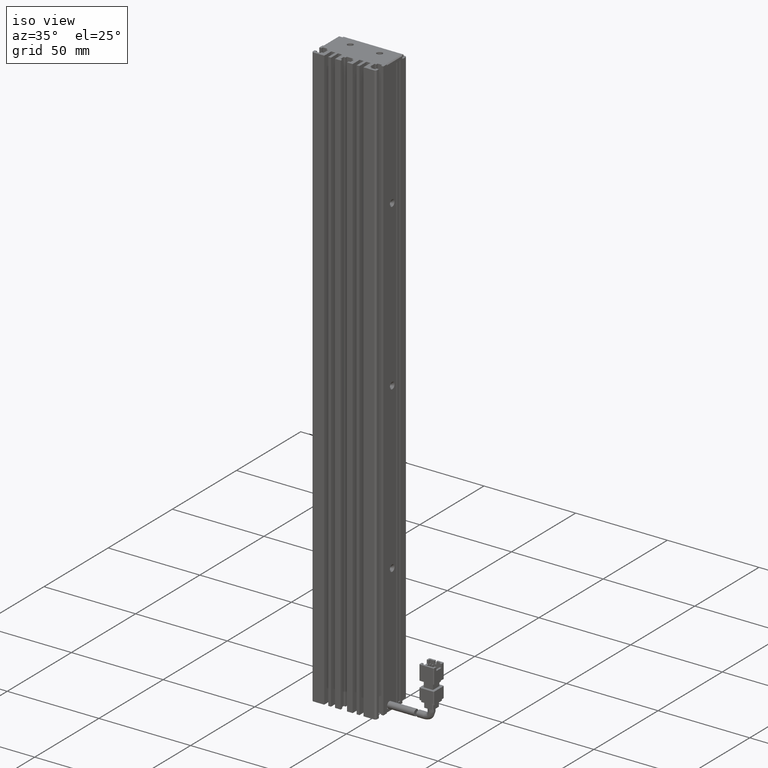
[diagram: clean part render]
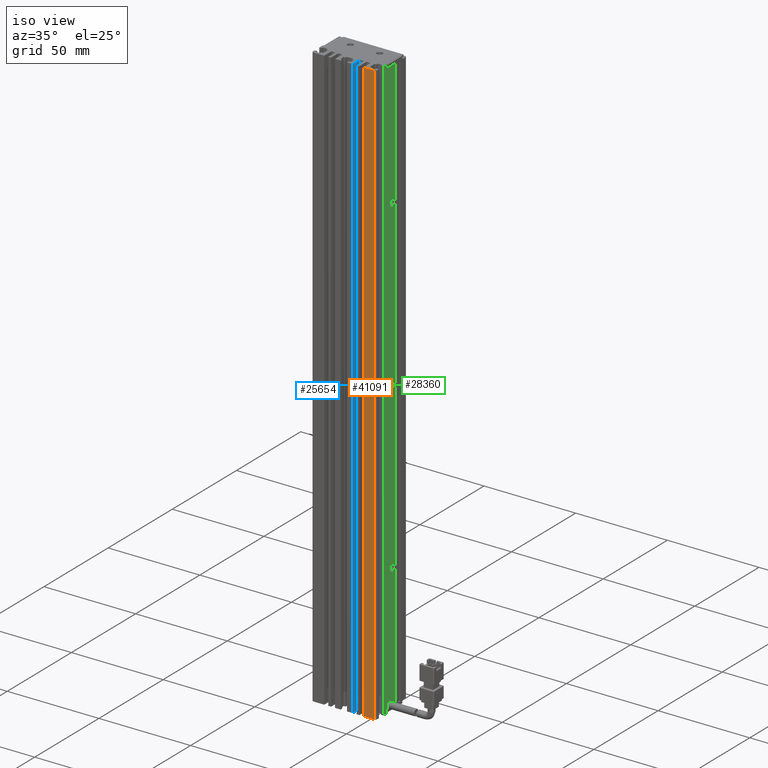
[diagram: same view with three faces highlighted in distinct colors, each labeled with its STEP entity id]
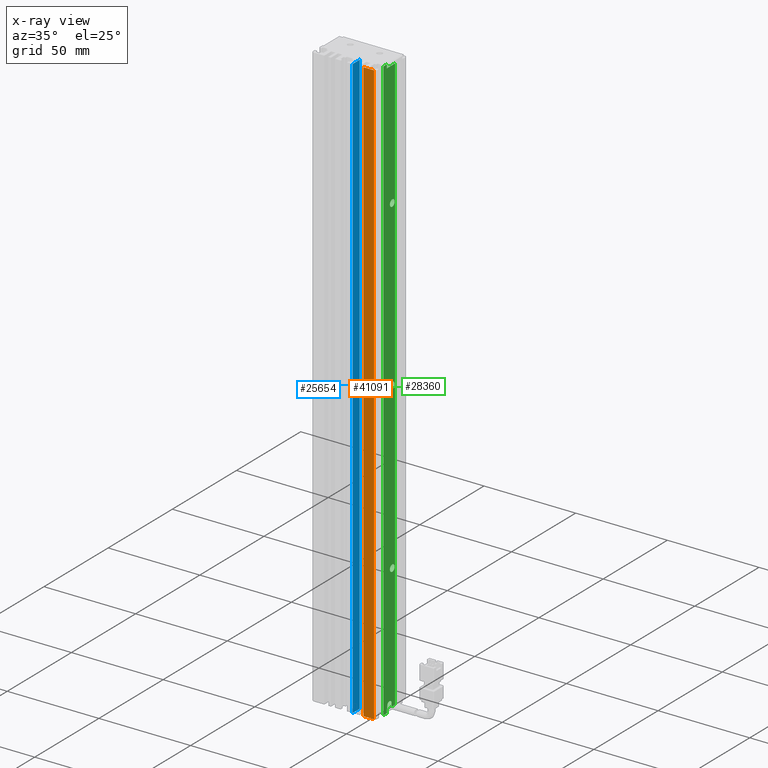
[diagram: x-ray of the same camera — body ghosted, the three highlighted faces saturated]
A machine part, iso view with three faces highlighted in distinct colors.
The next image is the same camera in x-ray (body ghosted, the three faces saturated) — at least one of them is partly hidden behind the body in this view.
Their STEP definitions:

[orange] entity #41091 — the highlighted planar face has unit normal (-0, 1, 0).
#2053 = CARTESIAN_POINT ( 'NONE',  ( 51.62537974683542100, 10.99073232304837000, 45.00000000000000000 ) ) ;
#5218 = ORIENTED_EDGE ( 'NONE', *, *, #48357, .F. ) ;
#10367 = ORIENTED_EDGE ( 'NONE', *, *, #105050, .F. ) ;
#15469 = VERTEX_POINT ( 'NONE', #39201 ) ;
#21302 = DIRECTION ( 'NONE',  ( -0.0000000000000000000, -0.0000000000000000000, -1.000000000000000000 ) ) ;
#28311 = LINE ( 'NONE', #38306, #95627 ) ;
#33579 = CARTESIAN_POINT ( 'NONE',  ( 40.92537974683542500, 10.99073232304837000, -275.0000000000000000 ) ) ;
#34014 = DIRECTION ( 'NONE',  ( 1.000000000000000000, 0.0000000000000000000, 0.0000000000000000000 ) ) ;
#35605 = ORIENTED_EDGE ( 'NONE', *, *, #122780, .F. ) ;
#38306 = CARTESIAN_POINT ( 'NONE',  ( 40.92537974683542500, 10.99073232304837000, 45.00000000000000000 ) ) ;
#39201 = CARTESIAN_POINT ( 'NONE',  ( 57.42537974683542500, 10.99073232304837200, 45.00000000000000000 ) ) ;
#41091 = ADVANCED_FACE ( 'NONE', ( #48156 ), #65164, .F. ) ;
#41250 = EDGE_LOOP ( 'NONE', ( #10367, #5218, #35605, #48142 ) ) ;
#45866 = VECTOR ( 'NONE', #34014, 1000.000000000000000 ) ;
#47306 = LINE ( 'NONE', #64570, #125901 ) ;
#48142 = ORIENTED_EDGE ( 'NONE', *, *, #120381, .T. ) ;
#48156 = FACE_OUTER_BOUND ( 'NONE', #41250, .T. ) ;
#48357 = EDGE_CURVE ( 'NONE', #103916, #15469, #28311, .T. ) ;
#54410 = DIRECTION ( 'NONE',  ( -7.477256361968982400E-016, 1.000000000000000000, 0.0000000000000000000 ) ) ;
#56150 = DIRECTION ( 'NONE',  ( -1.000000000000000000, -7.477256361968982400E-016, 0.0000000000000000000 ) ) ;
#61947 = LINE ( 'NONE', #33579, #45866 ) ;
#63071 = VECTOR ( 'NONE', #21302, 1000.000000000000000 ) ;
#64570 = CARTESIAN_POINT ( 'NONE',  ( 51.62537974683541400, 10.99073232304837000, 45.00000000000000000 ) ) ;
#65164 = PLANE ( 'NONE',  #84553 ) ;
#71154 = VERTEX_POINT ( 'NONE', #84197 ) ;
#74654 = VERTEX_POINT ( 'NONE', #74781 ) ;
#74781 = CARTESIAN_POINT ( 'NONE',  ( 57.42537974683542500, 10.99073232304837200, -275.0000000000000000 ) ) ;
#83437 = CARTESIAN_POINT ( 'NONE',  ( 57.42537974683542500, 10.99073232304837500, 45.00000000000000000 ) ) ;
#84197 = CARTESIAN_POINT ( 'NONE',  ( 51.62537974683542100, 10.99073232304837000, -275.0000000000000000 ) ) ;
#84553 = AXIS2_PLACEMENT_3D ( 'NONE', #116676, #54410, #56150 ) ;
#88786 = LINE ( 'NONE', #83437, #63071 ) ;
#95627 = VECTOR ( 'NONE', #109576, 1000.000000000000000 ) ;
#103916 = VERTEX_POINT ( 'NONE', #2053 ) ;
#105050 = EDGE_CURVE ( 'NONE', #15469, #74654, #88786, .T. ) ;
#109576 = DIRECTION ( 'NONE',  ( 1.000000000000000000, 0.0000000000000000000, 0.0000000000000000000 ) ) ;
#116676 = CARTESIAN_POINT ( 'NONE',  ( 40.92537974683542500, 10.99073232304836300, 45.00000000000000000 ) ) ;
#120381 = EDGE_CURVE ( 'NONE', #71154, #74654, #61947, .T. ) ;
#122780 = EDGE_CURVE ( 'NONE', #71154, #103916, #47306, .T. ) ;
#125901 = VECTOR ( 'NONE', #126407, 1000.000000000000000 ) ;
#126407 = DIRECTION ( 'NONE',  ( 0.0000000000000000000, 0.0000000000000000000, 1.000000000000000000 ) ) ;

[blue] entity #25654 — the highlighted planar face has unit normal (-1, 0, 0).
#2958 = VERTEX_POINT ( 'NONE', #87055 ) ;
#10936 = VERTEX_POINT ( 'NONE', #98299 ) ;
#14444 = VERTEX_POINT ( 'NONE', #47534 ) ;
#15081 = EDGE_CURVE ( 'NONE', #40540, #2958, #111597, .T. ) ;
#21445 = ORIENTED_EDGE ( 'NONE', *, *, #15081, .F. ) ;
#25654 = ADVANCED_FACE ( 'NONE', ( #41047 ), #80555, .F. ) ;
#26919 = VECTOR ( 'NONE', #95833, 1000.000000000000000 ) ;
#27410 = AXIS2_PLACEMENT_3D ( 'NONE', #91314, #131577, #40235 ) ;
#33029 = CARTESIAN_POINT ( 'NONE',  ( 45.72537974683541500, 7.083797468354437600, -275.0000000000000000 ) ) ;
#36528 = CARTESIAN_POINT ( 'NONE',  ( 45.72537974683541500, 7.083797468354437600, 45.00000000000000000 ) ) ;
#40235 = DIRECTION ( 'NONE',  ( 0.0000000000000000000, 0.0000000000000000000, 1.000000000000000000 ) ) ;
#40540 = VERTEX_POINT ( 'NONE', #94404 ) ;
#41047 = FACE_OUTER_BOUND ( 'NONE', #47537, .T. ) ;
#43265 = DIRECTION ( 'NONE',  ( 0.0000000000000000000, 1.000000000000000000, -0.0000000000000000000 ) ) ;
#43416 = CARTESIAN_POINT ( 'NONE',  ( 45.72537974683541500, 16.49073232304837300, 45.00000000000000000 ) ) ;
#46542 = ORIENTED_EDGE ( 'NONE', *, *, #96921, .F. ) ;
#46809 = DIRECTION ( 'NONE',  ( 0.0000000000000000000, 1.000000000000000000, -0.0000000000000000000 ) ) ;
#47534 = CARTESIAN_POINT ( 'NONE',  ( 45.72537974683541500, 16.49073232304837000, 45.00000000000000000 ) ) ;
#47537 = EDGE_LOOP ( 'NONE', ( #75485, #46542, #21445, #113255 ) ) ;
#62316 = LINE ( 'NONE', #33029, #78346 ) ;
#63704 = LINE ( 'NONE', #43416, #26919 ) ;
#68184 = VECTOR ( 'NONE', #112830, 1000.000000000000000 ) ;
#75485 = ORIENTED_EDGE ( 'NONE', *, *, #96358, .F. ) ;
#78346 = VECTOR ( 'NONE', #43265, 1000.000000000000000 ) ;
#80486 = EDGE_CURVE ( 'NONE', #40540, #10936, #62316, .T. ) ;
#80555 = PLANE ( 'NONE',  #27410 ) ;
#87055 = CARTESIAN_POINT ( 'NONE',  ( 45.72537974683541500, 10.99073232304837000, 45.00000000000000000 ) ) ;
#91314 = CARTESIAN_POINT ( 'NONE',  ( 45.72537974683541500, 7.083797468354437600, 45.00000000000000000 ) ) ;
#94404 = CARTESIAN_POINT ( 'NONE',  ( 45.72537974683541500, 10.99073232304837000, -275.0000000000000000 ) ) ;
#95833 = DIRECTION ( 'NONE',  ( -0.0000000000000000000, -0.0000000000000000000, -1.000000000000000000 ) ) ;
#96358 = EDGE_CURVE ( 'NONE', #14444, #10936, #63704, .T. ) ;
#96921 = EDGE_CURVE ( 'NONE', #2958, #14444, #114745, .T. ) ;
#98299 = CARTESIAN_POINT ( 'NONE',  ( 45.72537974683541500, 16.49073232304837000, -275.0000000000000000 ) ) ;
#111597 = LINE ( 'NONE', #123135, #68184 ) ;
#112830 = DIRECTION ( 'NONE',  ( 0.0000000000000000000, 0.0000000000000000000, 1.000000000000000000 ) ) ;
#113255 = ORIENTED_EDGE ( 'NONE', *, *, #80486, .T. ) ;
#114745 = LINE ( 'NONE', #36528, #129016 ) ;
#123135 = CARTESIAN_POINT ( 'NONE',  ( 45.72537974683541500, 10.99073232304837000, 45.00000000000000000 ) ) ;
#129016 = VECTOR ( 'NONE', #46809, 1000.000000000000000 ) ;
#131577 = DIRECTION ( 'NONE',  ( -1.000000000000000000, 0.0000000000000000000, 0.0000000000000000000 ) ) ;

[green] entity #28360 — the highlighted planar face has unit normal (-1, 0, 0).
#44 = VERTEX_POINT ( 'NONE', #29436 ) ;
#1642 = ORIENTED_EDGE ( 'NONE', *, *, #112100, .F. ) ;
#2477 = EDGE_CURVE ( 'NONE', #33555, #54665, #55099, .T. ) ;
#2732 = CARTESIAN_POINT ( 'NONE',  ( 58.42537974683542500, 25.99073232304837700, 45.00000000000000000 ) ) ;
#3727 = LINE ( 'NONE', #45324, #82006 ) ;
#5166 = CARTESIAN_POINT ( 'NONE',  ( 58.42537974681950900, 23.69073232304836900, -25.00000000000000700 ) ) ;
#6347 = EDGE_CURVE ( 'NONE', #40931, #126141, #15791, .T. ) ;
#7841 = LINE ( 'NONE', #51100, #58835 ) ;
#8772 = DIRECTION ( 'NONE',  ( 0.0000000000000000000, 0.0000000000000000000, -1.000000000000000000 ) ) ;
#9677 = CARTESIAN_POINT ( 'NONE',  ( 58.42537974683542500, 19.49073232304837000, 45.00000000000000000 ) ) ;
#10918 = ORIENTED_EDGE ( 'NONE', *, *, #65922, .F. ) ;
#12350 = CARTESIAN_POINT ( 'NONE',  ( 58.42537974683541800, 19.84073232304836400, -271.4500000000000500 ) ) ;
#12374 = EDGE_CURVE ( 'NONE', #13719, #54665, #3727, .T. ) ;
#12990 = FACE_BOUND ( 'NONE', #15447, .T. ) ;
#13628 = DIRECTION ( 'NONE',  ( 0.0000000000000000000, 0.0000000000000000000, -1.000000000000000000 ) ) ;
#13719 = VERTEX_POINT ( 'NONE', #122011 ) ;
#14644 = VECTOR ( 'NONE', #72110, 1000.000000000000000 ) ;
#15447 = EDGE_LOOP ( 'NONE', ( #31056, #23767 ) ) ;
#15569 = CARTESIAN_POINT ( 'NONE',  ( 58.42537974683542500, 7.083797468354437600, -273.0000000000000000 ) ) ;
#15791 = CIRCLE ( 'NONE', #48484, 1.800000000027918200 ) ;
#16938 = VECTOR ( 'NONE', #24519, 1000.000000000000000 ) ;
#17886 = LINE ( 'NONE', #101702, #14644 ) ;
#18244 = DIRECTION ( 'NONE',  ( 1.000000000000000000, 0.0000000000000000000, 0.0000000000000000000 ) ) ;
#19298 = DIRECTION ( 'NONE',  ( 0.0000000000000000000, 0.0000000000000000000, -1.000000000000000000 ) ) ;
#19364 = CARTESIAN_POINT ( 'NONE',  ( 58.42537974683541800, 21.49073232304836600, -271.4500000000000500 ) ) ;
#20226 = DIRECTION ( 'NONE',  ( 0.0000000000000000000, 1.000000000000000000, 0.0000000000000000000 ) ) ;
#20708 = LINE ( 'NONE', #62637, #46104 ) ;
#21615 = AXIS2_PLACEMENT_3D ( 'NONE', #49692, #69881, #8772 ) ;
#22353 = DIRECTION ( 'NONE',  ( -0.0000000000000000000, 0.0000000000000000000, 1.000000000000000000 ) ) ;
#23767 = ORIENTED_EDGE ( 'NONE', *, *, #97441, .F. ) ;
#24086 = CARTESIAN_POINT ( 'NONE',  ( 58.42537974683542500, 19.84073232304836400, -273.0000000000000000 ) ) ;
#24205 = VERTEX_POINT ( 'NONE', #122651 ) ;
#24519 = DIRECTION ( 'NONE',  ( -0.0000000000000000000, 0.0000000000000000000, 1.000000000000000000 ) ) ;
#24938 = PLANE ( 'NONE',  #69869 ) ;
#26182 = AXIS2_PLACEMENT_3D ( 'NONE', #118755, #108964, #97718 ) ;
#26370 = CARTESIAN_POINT ( 'NONE',  ( 58.42537974681950900, 23.69073232304836900, -25.00000000000000700 ) ) ;
#26825 = DIRECTION ( 'NONE',  ( 0.0000000000000000000, 0.0000000000000000000, -1.000000000000000000 ) ) ;
#27094 = VERTEX_POINT ( 'NONE', #47991 ) ;
#28260 = CIRCLE ( 'NONE', #104899, 1.650000000000002100 ) ;
#28360 = ADVANCED_FACE ( 'NONE', ( #12990, #72018, #131354, #107382 ), #24938, .F. ) ;
#29436 = CARTESIAN_POINT ( 'NONE',  ( 58.42537974681950900, 23.69073232304836900, -203.2000000000221000 ) ) ;
#29444 = CARTESIAN_POINT ( 'NONE',  ( 58.42537974687635200, 23.69073232304837300, -113.1999999999402500 ) ) ;
#30244 = CIRCLE ( 'NONE', #110656, 1.800000000059753800 ) ;
#31056 = ORIENTED_EDGE ( 'NONE', *, *, #38628, .F. ) ;
#31313 = EDGE_CURVE ( 'NONE', #126141, #40931, #93617, .T. ) ;
#31970 = ORIENTED_EDGE ( 'NONE', *, *, #2477, .T. ) ;
#33555 = VERTEX_POINT ( 'NONE', #79002 ) ;
#33612 = LINE ( 'NONE', #2732, #72006 ) ;
#34373 = VECTOR ( 'NONE', #95321, 1000.000000000000000 ) ;
#34484 = DIRECTION ( 'NONE',  ( 1.000000000000000000, 0.0000000000000000000, 0.0000000000000000000 ) ) ;
#34995 = CIRCLE ( 'NONE', #69361, 1.799999999977902600 ) ;
#35426 = VECTOR ( 'NONE', #102142, 1000.000000000000000 ) ;
#36595 = VERTEX_POINT ( 'NONE', #107730 ) ;
#37466 = VERTEX_POINT ( 'NONE', #73911 ) ;
#37906 = EDGE_LOOP ( 'NONE', ( #117711, #69040 ) ) ;
#38628 = EDGE_CURVE ( 'NONE', #123720, #44, #34995, .T. ) ;
#40204 = DIRECTION ( 'NONE',  ( 1.000000000000000000, 5.687617954022316600E-016, -0.0000000000000000000 ) ) ;
#40639 = EDGE_CURVE ( 'NONE', #127831, #84415, #66099, .T. ) ;
#40931 = VERTEX_POINT ( 'NONE', #103596 ) ;
#41791 = LINE ( 'NONE', #79725, #115606 ) ;
#41896 = CARTESIAN_POINT ( 'NONE',  ( 58.42537974683542500, 19.49073232304837000, 45.00000000000000000 ) ) ;
#44215 = VECTOR ( 'NONE', #22353, 1000.000000000000000 ) ;
#45324 = CARTESIAN_POINT ( 'NONE',  ( 58.42537974683542500, 7.083797468354437600, -273.0000000000000000 ) ) ;
#46104 = VECTOR ( 'NONE', #83744, 1000.000000000000000 ) ;
#46578 = EDGE_CURVE ( 'NONE', #128903, #24205, #7841, .T. ) ;
#47908 = ORIENTED_EDGE ( 'NONE', *, *, #125739, .T. ) ;
#47991 = CARTESIAN_POINT ( 'NONE',  ( 58.42537974683542500, 19.49073232304837000, 43.00000000000000000 ) ) ;
#48334 = DIRECTION ( 'NONE',  ( 0.0000000000000000000, 0.0000000000000000000, 1.000000000000000000 ) ) ;
#48484 = AXIS2_PLACEMENT_3D ( 'NONE', #26370, #119421, #26825 ) ;
#48920 = DIRECTION ( 'NONE',  ( -1.000000000000000000, 0.0000000000000000000, 0.0000000000000000000 ) ) ;
#49692 = CARTESIAN_POINT ( 'NONE',  ( 58.42537974687635200, 23.69073232304837300, -115.0000000000000000 ) ) ;
#51100 = CARTESIAN_POINT ( 'NONE',  ( 58.42537974683542500, 7.083797468354437600, -275.0000000000000000 ) ) ;
#54665 = VERTEX_POINT ( 'NONE', #64148 ) ;
#55099 = LINE ( 'NONE', #96143, #34373 ) ;
#55554 = DIRECTION ( 'NONE',  ( -0.0000000000000000000, -1.000000000000000000, 0.0000000000000000000 ) ) ;
#55743 = EDGE_CURVE ( 'NONE', #27094, #58138, #100372, .T. ) ;
#56685 = CARTESIAN_POINT ( 'NONE',  ( 58.42537974681950900, 23.69073232304836900, -26.80000000002792500 ) ) ;
#58138 = VERTEX_POINT ( 'NONE', #65970 ) ;
#58781 = CARTESIAN_POINT ( 'NONE',  ( 58.42537974687635200, 23.69073232304837300, -115.0000000000000000 ) ) ;
#58835 = VECTOR ( 'NONE', #70422, 1000.000000000000000 ) ;
#61081 = CARTESIAN_POINT ( 'NONE',  ( 58.42537974683542500, 19.49073232304837000, -275.0000000000000000 ) ) ;
#62512 = VERTEX_POINT ( 'NONE', #29444 ) ;
#62637 = CARTESIAN_POINT ( 'NONE',  ( 58.42537974683542500, 7.083797468354437600, 45.00000000000000000 ) ) ;
#64148 = CARTESIAN_POINT ( 'NONE',  ( 58.42537974683542500, 23.14073232304837200, -273.0000000000000000 ) ) ;
#65922 = EDGE_CURVE ( 'NONE', #24205, #37466, #41791, .T. ) ;
#65970 = CARTESIAN_POINT ( 'NONE',  ( 58.42537974683542500, 19.49073232304837000, 45.00000000000000000 ) ) ;
#66099 = LINE ( 'NONE', #15569, #101347 ) ;
#66900 = EDGE_CURVE ( 'NONE', #62512, #36595, #30244, .T. ) ;
#67342 = DIRECTION ( 'NONE',  ( 0.0000000000000000000, 0.0000000000000000000, 1.000000000000000000 ) ) ;
#69040 = ORIENTED_EDGE ( 'NONE', *, *, #6347, .F. ) ;
#69361 = AXIS2_PLACEMENT_3D ( 'NONE', #80468, #130582, #19298 ) ;
#69869 = AXIS2_PLACEMENT_3D ( 'NONE', #130435, #48920, #67342 ) ;
#69881 = DIRECTION ( 'NONE',  ( 1.000000000000000000, 0.0000000000000000000, 0.0000000000000000000 ) ) ;
#70422 = DIRECTION ( 'NONE',  ( -0.0000000000000000000, -1.000000000000000000, 0.0000000000000000000 ) ) ;
#72006 = VECTOR ( 'NONE', #104117, 1000.000000000000000 ) ;
#72018 = FACE_BOUND ( 'NONE', #37906, .T. ) ;
#72110 = DIRECTION ( 'NONE',  ( 0.0000000000000000000, 1.000000000000000000, -0.0000000000000000000 ) ) ;
#73082 = VERTEX_POINT ( 'NONE', #12350 ) ;
#73911 = CARTESIAN_POINT ( 'NONE',  ( 58.42537974683542500, 16.79073232304836700, 45.00000000000000000 ) ) ;
#75146 = EDGE_LOOP ( 'NONE', ( #47908, #130221, #31970, #84421, #127636, #100166, #85649, #1642, #10918, #77142, #117233, #111760 ) ) ;
#77142 = ORIENTED_EDGE ( 'NONE', *, *, #46578, .F. ) ;
#77233 = EDGE_CURVE ( 'NONE', #36595, #62512, #121398, .T. ) ;
#79002 = CARTESIAN_POINT ( 'NONE',  ( 58.42537974683541800, 23.14073232304836800, -271.4500000000000500 ) ) ;
#79725 = CARTESIAN_POINT ( 'NONE',  ( 58.42537974683542500, 16.79073232304836700, 45.00000000000000000 ) ) ;
#80468 = CARTESIAN_POINT ( 'NONE',  ( 58.42537974681950900, 23.69073232304836900, -205.0000000000000300 ) ) ;
#80476 = CARTESIAN_POINT ( 'NONE',  ( 58.42537974681950900, 23.69073232304836900, -206.7999999999779300 ) ) ;
#81878 = EDGE_CURVE ( 'NONE', #33555, #73082, #28260, .T. ) ;
#82006 = VECTOR ( 'NONE', #55554, 1000.000000000000000 ) ;
#82180 = CARTESIAN_POINT ( 'NONE',  ( 58.42537974683542500, 25.99073232304837700, 43.00000000000000000 ) ) ;
#82613 = VERTEX_POINT ( 'NONE', #82180 ) ;
#83744 = DIRECTION ( 'NONE',  ( 0.0000000000000000000, 1.000000000000000000, -0.0000000000000000000 ) ) ;
#84415 = VERTEX_POINT ( 'NONE', #106525 ) ;
#84421 = ORIENTED_EDGE ( 'NONE', *, *, #12374, .F. ) ;
#85649 = ORIENTED_EDGE ( 'NONE', *, *, #55743, .T. ) ;
#85701 = LINE ( 'NONE', #24086, #16938 ) ;
#89832 = EDGE_CURVE ( 'NONE', #82613, #13719, #33612, .T. ) ;
#93148 = EDGE_CURVE ( 'NONE', #27094, #82613, #17886, .T. ) ;
#93617 = CIRCLE ( 'NONE', #109196, 1.800000000027918200 ) ;
#95321 = DIRECTION ( 'NONE',  ( -0.0000000000000000000, 2.238352872228144400E-015, -1.000000000000000000 ) ) ;
#96143 = CARTESIAN_POINT ( 'NONE',  ( 58.42537974683542500, 23.14073232304837200, -273.0000000000000000 ) ) ;
#97441 = EDGE_CURVE ( 'NONE', #44, #123720, #127237, .T. ) ;
#97718 = DIRECTION ( 'NONE',  ( 0.0000000000000000000, 0.0000000000000000000, -1.000000000000000000 ) ) ;
#100166 = ORIENTED_EDGE ( 'NONE', *, *, #93148, .F. ) ;
#100372 = LINE ( 'NONE', #41896, #44215 ) ;
#101105 = LINE ( 'NONE', #9677, #35426 ) ;
#101347 = VECTOR ( 'NONE', #118415, 1000.000000000000000 ) ;
#101702 = CARTESIAN_POINT ( 'NONE',  ( 58.42537974683542500, 7.083797468354437600, 43.00000000000000000 ) ) ;
#102142 = DIRECTION ( 'NONE',  ( -0.0000000000000000000, 0.0000000000000000000, 1.000000000000000000 ) ) ;
#103596 = CARTESIAN_POINT ( 'NONE',  ( 58.42537974681950900, 23.69073232304836900, -23.19999999997208900 ) ) ;
#104117 = DIRECTION ( 'NONE',  ( -0.0000000000000000000, -0.0000000000000000000, -1.000000000000000000 ) ) ;
#104899 = AXIS2_PLACEMENT_3D ( 'NONE', #19364, #40204, #20226 ) ;
#106525 = CARTESIAN_POINT ( 'NONE',  ( 58.42537974683542500, 19.49073232304837000, -273.0000000000000000 ) ) ;
#107382 = FACE_BOUND ( 'NONE', #122994, .T. ) ;
#107730 = CARTESIAN_POINT ( 'NONE',  ( 58.42537974687635200, 23.69073232304837300, -116.8000000000597500 ) ) ;
#108964 = DIRECTION ( 'NONE',  ( 1.000000000000000000, 0.0000000000000000000, 0.0000000000000000000 ) ) ;
#109196 = AXIS2_PLACEMENT_3D ( 'NONE', #5166, #34484, #13628 ) ;
#110618 = EDGE_CURVE ( 'NONE', #128903, #84415, #101105, .T. ) ;
#110656 = AXIS2_PLACEMENT_3D ( 'NONE', #58781, #18244, #119279 ) ;
#111760 = ORIENTED_EDGE ( 'NONE', *, *, #40639, .F. ) ;
#112100 = EDGE_CURVE ( 'NONE', #37466, #58138, #20708, .T. ) ;
#115606 = VECTOR ( 'NONE', #48334, 1000.000000000000000 ) ;
#117233 = ORIENTED_EDGE ( 'NONE', *, *, #110618, .T. ) ;
#117711 = ORIENTED_EDGE ( 'NONE', *, *, #31313, .F. ) ;
#118415 = DIRECTION ( 'NONE',  ( -0.0000000000000000000, -1.000000000000000000, 0.0000000000000000000 ) ) ;
#118755 = CARTESIAN_POINT ( 'NONE',  ( 58.42537974681950900, 23.69073232304836900, -205.0000000000000300 ) ) ;
#119279 = DIRECTION ( 'NONE',  ( 0.0000000000000000000, 0.0000000000000000000, -1.000000000000000000 ) ) ;
#119421 = DIRECTION ( 'NONE',  ( 1.000000000000000000, 0.0000000000000000000, 0.0000000000000000000 ) ) ;
#119875 = CARTESIAN_POINT ( 'NONE',  ( 58.42537974683542500, 19.84073232304836400, -273.0000000000000000 ) ) ;
#121398 = CIRCLE ( 'NONE', #21615, 1.800000000059753800 ) ;
#122011 = CARTESIAN_POINT ( 'NONE',  ( 58.42537974683542500, 25.99073232304837700, -273.0000000000000000 ) ) ;
#122651 = CARTESIAN_POINT ( 'NONE',  ( 58.42537974683542500, 16.79073232304836700, -275.0000000000000000 ) ) ;
#122994 = EDGE_LOOP ( 'NONE', ( #130849, #132202 ) ) ;
#123720 = VERTEX_POINT ( 'NONE', #80476 ) ;
#125739 = EDGE_CURVE ( 'NONE', #127831, #73082, #85701, .T. ) ;
#126141 = VERTEX_POINT ( 'NONE', #56685 ) ;
#127237 = CIRCLE ( 'NONE', #26182, 1.799999999977902600 ) ;
#127636 = ORIENTED_EDGE ( 'NONE', *, *, #89832, .F. ) ;
#127831 = VERTEX_POINT ( 'NONE', #119875 ) ;
#128903 = VERTEX_POINT ( 'NONE', #61081 ) ;
#130221 = ORIENTED_EDGE ( 'NONE', *, *, #81878, .F. ) ;
#130435 = CARTESIAN_POINT ( 'NONE',  ( 58.42537974683542500, 7.083797468354437600, 45.00000000000000000 ) ) ;
#130582 = DIRECTION ( 'NONE',  ( 1.000000000000000000, 0.0000000000000000000, 0.0000000000000000000 ) ) ;
#130849 = ORIENTED_EDGE ( 'NONE', *, *, #77233, .F. ) ;
#131354 = FACE_OUTER_BOUND ( 'NONE', #75146, .T. ) ;
#132202 = ORIENTED_EDGE ( 'NONE', *, *, #66900, .F. ) ;